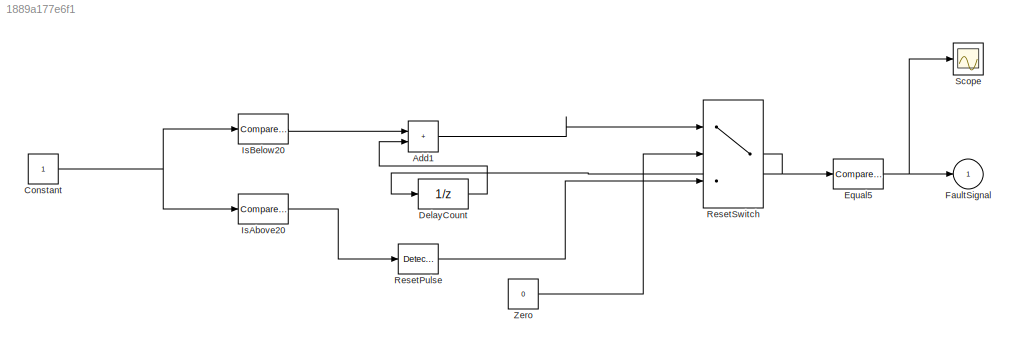
MODEL slx_1889a177e6f1
KIND model
CONFIG AbsTol = auto
CONFIG EnableMultiTasking = off
CONFIG FixedStep = auto
CONFIG MaxStep = auto
CONFIG MinStep = auto
CONFIG RelTol = 1e-3
CONFIG SampleTimeConstraint = Unconstrained
CONFIG SolverName = VariableStepAuto
CONFIG StartTime = 0.0
CONFIG StopTime = 10.0
BLOCK [Sum] Add1
  IconShape = rectangular
BLOCK [Constant] Constant
BLOCK [UnitDelay] DelayCount
  HasFrameUpgradeWarning = on
  SampleTime = -1
BLOCK [Reference] Equal5  REF=simulink/Logic and Bit
Operations/Compare
To Constant
  SourceBlock = simulink/Logic and Bit\nOperations/Compare\nTo Constant
  SourceType = Compare To Constant
BLOCK [Outport] FaultSignal
BLOCK [Reference] IsAbove20  REF=simulink/Logic and Bit
Operations/Compare
To Constant
  SourceBlock = simulink/Logic and Bit\nOperations/Compare\nTo Constant
  SourceType = Compare To Constant
BLOCK [Reference] IsBelow20  REF=simulink/Logic and Bit
Operations/Compare
To Constant
  SourceBlock = simulink/Logic and Bit\nOperations/Compare\nTo Constant
  SourceType = Compare To Constant
BLOCK [Reference] ResetPulse  REF=simulink/Logic and Bit
Operations/Detect Rise
Positive
  SourceBlock = simulink/Logic and Bit\nOperations/Detect Rise\nPositive
  SourceType = Detect Rise Positive
BLOCK [Switch] ResetSwitch
  Criteria = u2 ~= 0
  InputSameDT = off
  SaturateOnIntegerOverflow = off
  Threshold = 0.5
BLOCK [Scope] Scope
  Floating = off
  GraphicalSettings = {"GraphicalSettings":{"LegacySettings":true,"Style":{"Style":{"PlotType":"Auto"}}}}
  NumInputPorts = 1
  WasSavedAsWebScope = on
BLOCK [Constant] Zero
  Value = 0
LINE Add1:1 -> ResetSwitch:1
NET Constant:1 -> IsAbove20:1, IsBelow20:1
LINE DelayCount:1 -> Add1:2
NET Equal5:1 -> FaultSignal:1, Scope:1
LINE IsAbove20:1 -> ResetPulse:1
LINE IsBelow20:1 -> Add1:1
LINE ResetPulse:1 -> ResetSwitch:3
NET ResetSwitch:1 -> DelayCount:1, Equal5:1
LINE Zero:1 -> ResetSwitch:2
note: NET lines group one-source signal fan-out (src -> all destinations, sorted); 1:1 wires keep LINE
